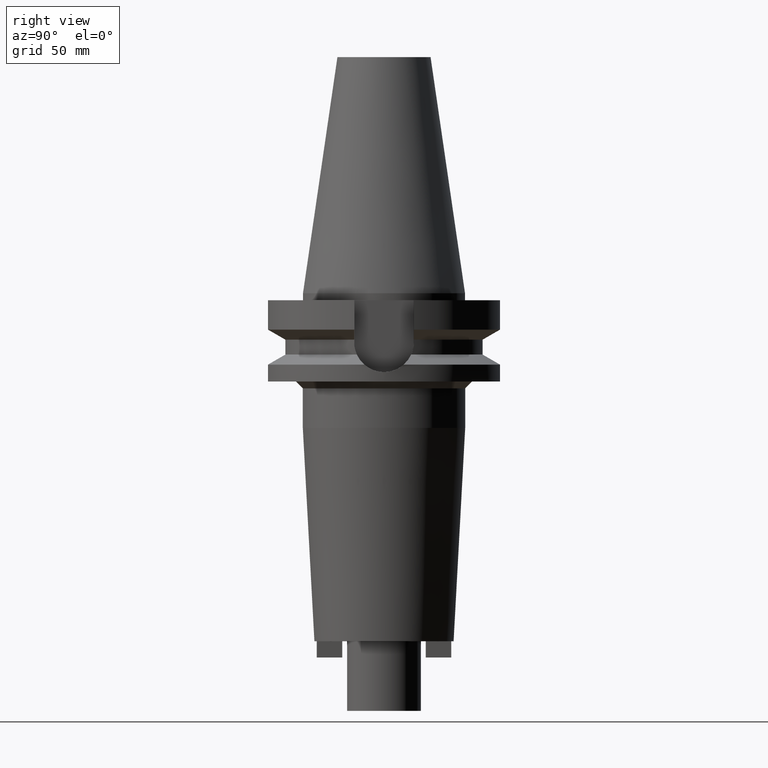
[diagram: clean part render]
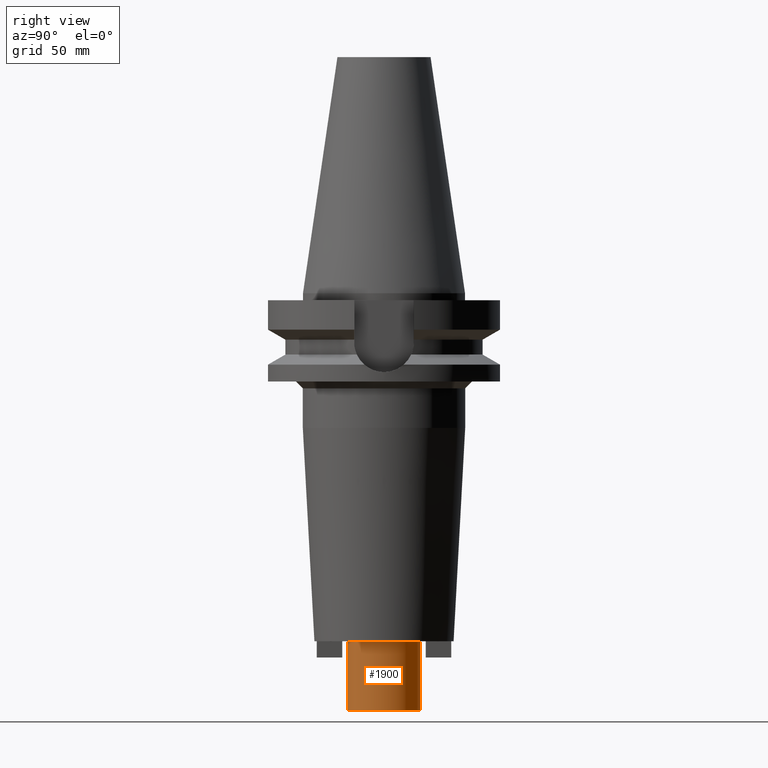
[diagram: same view with one face highlighted and labeled with its STEP entity id]
A machine part, right view. The second image highlights one B-rep face of the part: STEP entity #1900.
In plain terms, the highlighted cylindrical surface (partial cylindrical patch) has radius 15.875 mm, axis along (0, 0, -1).
Its self-contained STEP definition (entity closure, byte-faithful):
#623=CARTESIAN_POINT('',(0.E0,2.643889974679E-14,-1.5E2));
#624=DIRECTION('',(0.E0,0.E0,-1.E0));
#625=DIRECTION('',(0.E0,1.E0,0.E0));
#626=AXIS2_PLACEMENT_3D('',#623,#624,#625);
#667=DIRECTION('',(0.E0,0.E0,-1.E0));
#668=VECTOR('',#667,3.E1);
#669=CARTESIAN_POINT('',(0.E0,1.5875E1,-1.5E2));
#670=LINE('',#669,#668);
#674=DIRECTION('',(0.E0,0.E0,-1.E0));
#675=VECTOR('',#674,3.E1);
#676=CARTESIAN_POINT('',(0.E0,-1.5875E1,-1.5E2));
#677=LINE('',#676,#675);
#689=CARTESIAN_POINT('',(0.E0,2.643889974679E-14,-1.8E2));
#690=DIRECTION('',(0.E0,0.E0,1.E0));
#691=DIRECTION('',(0.E0,-1.E0,0.E0));
#692=AXIS2_PLACEMENT_3D('',#689,#690,#691);
#1316=CARTESIAN_POINT('',(0.E0,1.5875E1,-1.5E2));
#1317=CARTESIAN_POINT('',(0.E0,-1.5875E1,-1.5E2));
#1318=VERTEX_POINT('',#1316);
#1319=VERTEX_POINT('',#1317);
#1336=CARTESIAN_POINT('',(0.E0,1.5875E1,-1.8E2));
#1337=VERTEX_POINT('',#1336);
#1338=CARTESIAN_POINT('',(0.E0,-1.5875E1,-1.8E2));
#1339=VERTEX_POINT('',#1338);
#1886=CARTESIAN_POINT('',(0.E0,2.643889974679E-14,1.1589E2));
#1887=DIRECTION('',(0.E0,0.E0,-1.E0));
#1888=DIRECTION('',(0.E0,-1.E0,0.E0));
#1889=AXIS2_PLACEMENT_3D('',#1886,#1887,#1888);
#1890=CYLINDRICAL_SURFACE('',#1889,1.5875E1);
#1892=ORIENTED_EDGE('',*,*,#1891,.T.);
#1894=ORIENTED_EDGE('',*,*,#1893,.F.);
#1896=ORIENTED_EDGE('',*,*,#1895,.F.);
#1897=ORIENTED_EDGE('',*,*,#1859,.F.);
#1898=EDGE_LOOP('',(#1892,#1894,#1896,#1897));
#1899=FACE_OUTER_BOUND('',#1898,.F.);
#627=CIRCLE('',#626,1.5875E1);
#693=CIRCLE('',#692,1.5875E1);
#1859=EDGE_CURVE('',#1318,#1319,#627,.T.);
#1891=EDGE_CURVE('',#1318,#1337,#670,.T.);
#1893=EDGE_CURVE('',#1339,#1337,#693,.T.);
#1895=EDGE_CURVE('',#1319,#1339,#677,.T.);
#1900=ADVANCED_FACE('',(#1899),#1890,.T.);